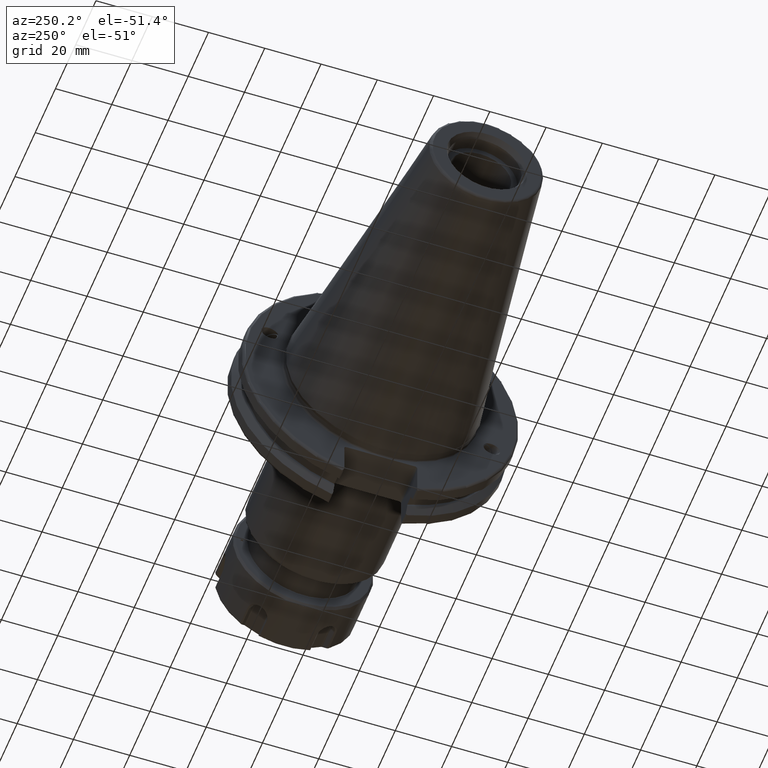
[diagram: clean part render]
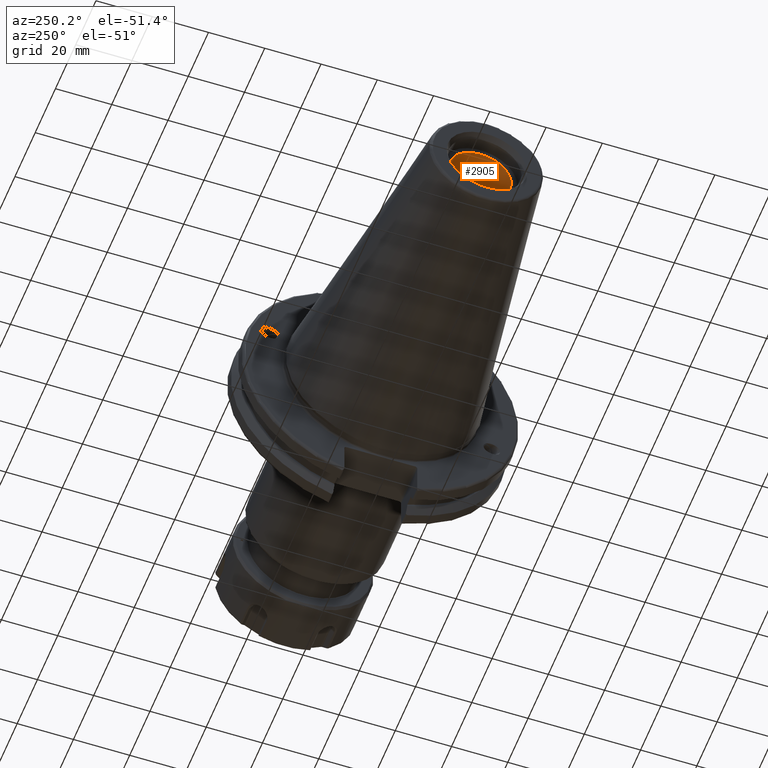
[diagram: same view with one face highlighted and labeled with its STEP entity id]
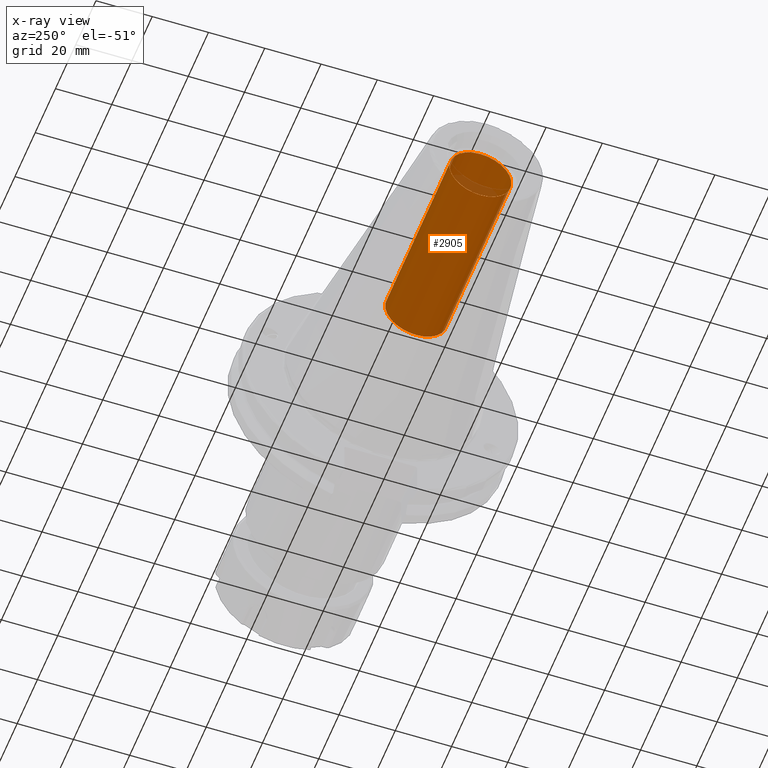
[diagram: x-ray of the same camera — body ghosted, the highlighted face saturated]
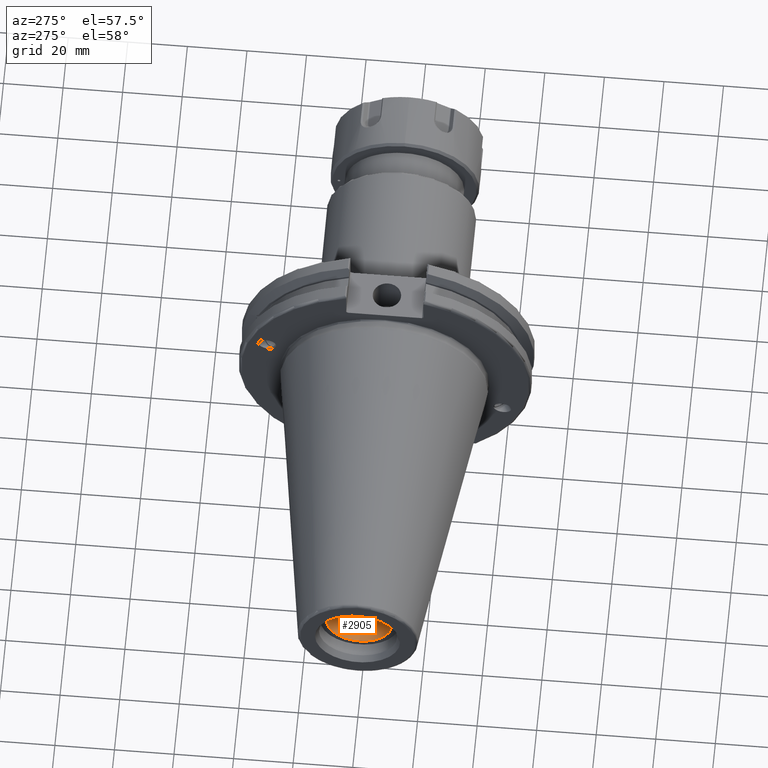
[diagram: same view with one face highlighted and labeled with its STEP entity id]
A machine part, auxiliary view. The second image highlights one B-rep face of the part: STEP entity #2905.
The next image is the same camera in x-ray: the body ghosted, the highlighted face saturated — about 4% of this face is hidden behind the body in this view.
A second angle (auxiliary view) of the same face is appended — the face is thin or edge-on in the first view.
In plain terms, the highlighted cylindrical surface (bore or boss wall) has radius 10.9855 mm, axis along (-1, 0, 0).
Its self-contained STEP definition (entity closure, byte-faithful):
#278=CYLINDRICAL_SURFACE('',#3201,10.9855);
#444=FACE_OUTER_BOUND('',#628,.T.);
#628=EDGE_LOOP('',(#2179,#2180,#2181,#2182));
#814=LINE('',#4831,#989);
#989=VECTOR('',#3648,10.9855);
#1169=CIRCLE('',#3200,10.9855);
#1170=CIRCLE('',#3202,10.9855);
#1352=VERTEX_POINT('',#4825);
#1353=VERTEX_POINT('',#4829);
#1662=EDGE_CURVE('',#1352,#1352,#1169,.T.);
#1664=EDGE_CURVE('',#1353,#1353,#1170,.T.);
#1665=EDGE_CURVE('',#1353,#1352,#814,.T.);
#2179=ORIENTED_EDGE('',*,*,#1664,.F.);
#2180=ORIENTED_EDGE('',*,*,#1665,.T.);
#2181=ORIENTED_EDGE('',*,*,#1662,.F.);
#2182=ORIENTED_EDGE('',*,*,#1665,.F.);
#2905=ADVANCED_FACE('',(#444),#278,.F.);
#3200=AXIS2_PLACEMENT_3D('',#4826,#3641,#3642);
#3201=AXIS2_PLACEMENT_3D('',#4828,#3644,#3645);
#3202=AXIS2_PLACEMENT_3D('',#4830,#3646,#3647);
#3641=DIRECTION('center_axis',(-1.,0.,0.));
#3642=DIRECTION('ref_axis',(0.,0.,1.));
#3644=DIRECTION('center_axis',(-1.,0.,0.));
#3645=DIRECTION('ref_axis',(0.,0.,1.));
#3646=DIRECTION('center_axis',(1.,0.,0.));
#3647=DIRECTION('ref_axis',(0.,0.,1.));
#3648=DIRECTION('',(1.,0.,0.));
#4825=CARTESIAN_POINT('',(-31.6,-1.34533574120333E-15,-10.9855));
#4826=CARTESIAN_POINT('Origin',(-31.6,0.,0.));
#4828=CARTESIAN_POINT('Origin',(-66.6,0.,0.));
#4829=CARTESIAN_POINT('',(-95.25,1.34533574120333E-15,-10.9855));
#4830=CARTESIAN_POINT('Origin',(-95.25,0.,0.));
#4831=CARTESIAN_POINT('',(-66.6,-1.34533574120333E-15,-10.9855));